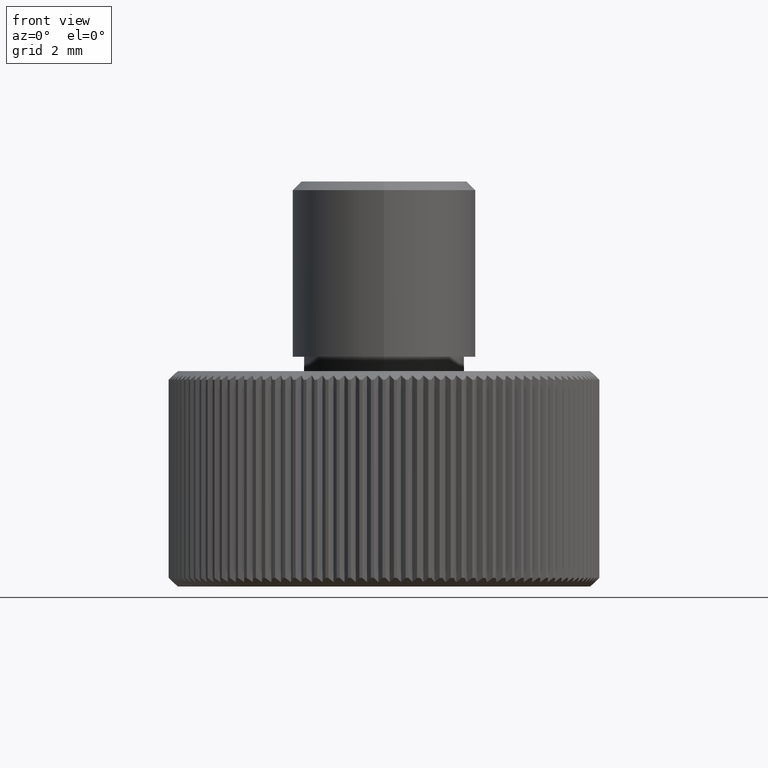
[diagram: clean part render]
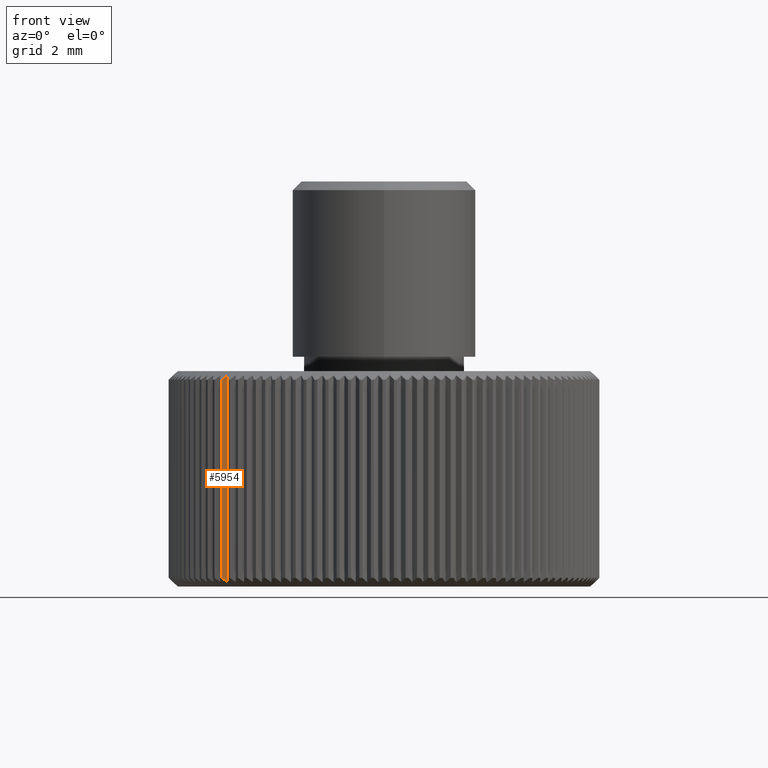
[diagram: same view with one face highlighted and labeled with its STEP entity id]
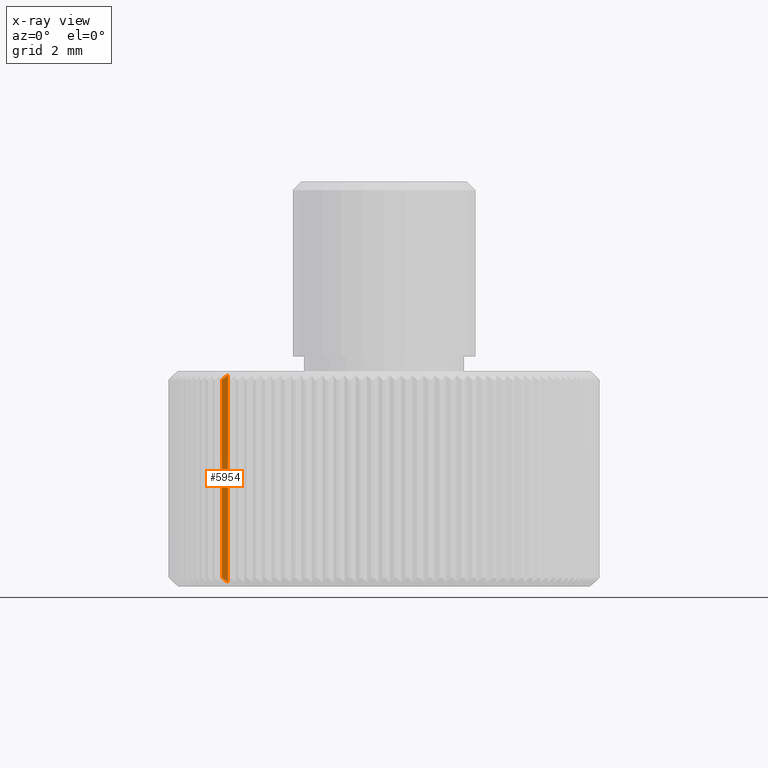
[diagram: x-ray of the same camera — body ghosted, the highlighted face saturated]
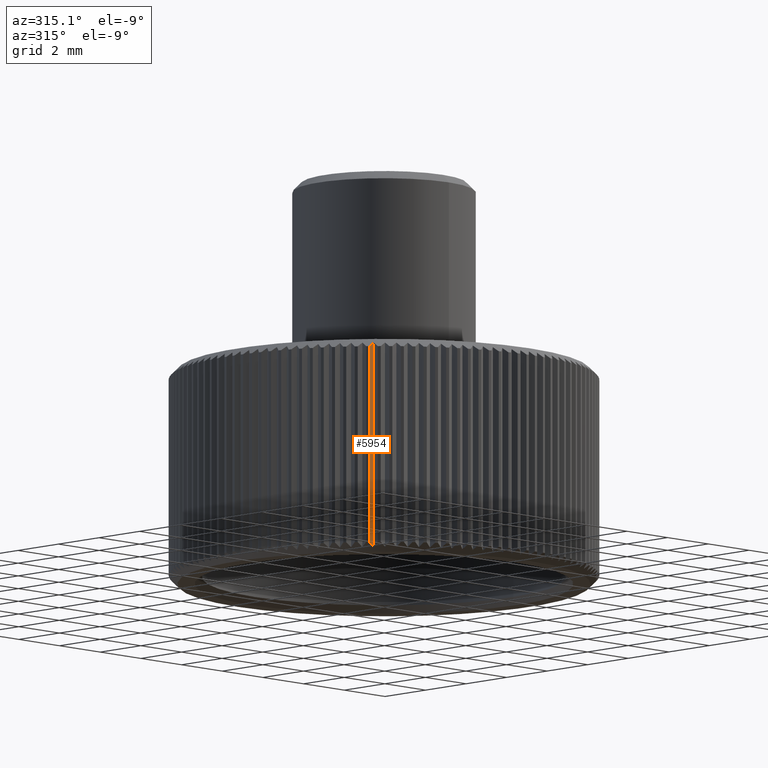
[diagram: same view with one face highlighted and labeled with its STEP entity id]
A machine part, front view. The second image highlights one B-rep face of the part: STEP entity #5954.
The next image is the same camera in x-ray: the body ghosted, the highlighted face saturated — about 0% of this face is hidden behind the body in this view.
A second angle (auxiliary view) of the same face is appended — the face is thin or edge-on in the first view.
In plain terms, the highlighted planar face has unit normal (0.047, 0.9989, -0).
Its self-contained STEP definition (entity closure, byte-faithful):
#307 = CARTESIAN_POINT ( 'NONE',  ( -5.435624558901286818, -4.947371776982815383, 0.1500001255113545817 ) ) ;
#1068 = EDGE_CURVE ( 'NONE', #1158, #5627, #4467, .T. ) ;
#1158 = VERTEX_POINT ( 'NONE', #7996 ) ;
#1377 = CARTESIAN_POINT ( 'NONE',  ( -5.435624559216231333, -4.947371777269482074, 7.349999874062772776 ) ) ;
#1574 = VECTOR ( 'NONE', #8098, 1000.000000000000000 ) ;
#1738 = ORIENTED_EDGE ( 'NONE', *, *, #7720, .T. ) ;
#2269 = VERTEX_POINT ( 'NONE', #12519 ) ;
#2652 = CARTESIAN_POINT ( 'NONE',  ( -5.435624382000001198, -4.947371785000001410, 0.1068000000000000060 ) ) ;
#3831 = CARTESIAN_POINT ( 'NONE',  ( -5.435624382000001198, -4.947371785000001410, 3.750000000000000000 ) ) ;
#4045 = CARTESIAN_POINT ( 'NONE',  ( -5.645444434000000733, -4.937505154000000118, 3.750000000000000000 ) ) ;
#4294 = VECTOR ( 'NONE', #9794, 1000.000000000000000 ) ;
#4467 = B_SPLINE_CURVE_WITH_KNOTS ( 'NONE', 3,
 ( #307, #5347, #5479, #11456 ),
 .UNSPECIFIED., .F., .F.,
 ( 4, 4 ),
 ( 8.463785970660977184E-07, 1.000000000000000000 ),
 .UNSPECIFIED. ) ;
#4796 = VERTEX_POINT ( 'NONE', #4916 ) ;
#4916 = CARTESIAN_POINT ( 'NONE',  ( -5.645444434197548489, -4.937505154875836411, 7.199999999064163880 ) ) ;
#5196 = DIRECTION ( 'NONE',  ( -0.9988961901496479223, 0.04697234616791389622, 0.000000000000000000 ) ) ;
#5347 = CARTESIAN_POINT ( 'NONE',  ( -5.505012386999507790, -4.944108865573357825, 0.1991189473484482608 ) ) ;
#5479 = CARTESIAN_POINT ( 'NONE',  ( -5.574949377843025466, -4.940820131091642864, 0.2491189060879004102 ) ) ;
#5627 = VERTEX_POINT ( 'NONE', #7786 ) ;
#5954 = ADVANCED_FACE ( 'NONE', ( #7685 ), #11737, .F. ) ;
#6689 = DIRECTION ( 'NONE',  ( 0.04697234616791390316, 0.9988961901496480333, -0.000000000000000000 ) ) ;
#7008 = LINE ( 'NONE', #3831, #4294 ) ;
#7262 = ORIENTED_EDGE ( 'NONE', *, *, #10163, .F. ) ;
#7685 = FACE_OUTER_BOUND ( 'NONE', #8652, .T. ) ;
#7720 = EDGE_CURVE ( 'NONE', #1158, #2269, #7008, .T. ) ;
#7786 = CARTESIAN_POINT ( 'NONE',  ( -5.645444433572361476, -4.937505154329047130, 0.3000000001052716136 ) ) ;
#7996 = CARTESIAN_POINT ( 'NONE',  ( -5.435624558901286818, -4.947371776982815383, 0.1500001255113545817 ) ) ;
#8033 = LINE ( 'NONE', #4045, #1574 ) ;
#8098 = DIRECTION ( 'NONE',  ( 0.000000000000000000, 0.000000000000000000, 1.000000000000000000 ) ) ;
#8104 = ORIENTED_EDGE ( 'NONE', *, *, #1068, .F. ) ;
#8652 = EDGE_LOOP ( 'NONE', ( #1738, #11143, #7262, #8104 ) ) ;
#9794 = DIRECTION ( 'NONE',  ( 0.000000000000000000, 0.000000000000000000, 1.000000000000000000 ) ) ;
#10159 = B_SPLINE_CURVE_WITH_KNOTS ( 'NONE', 3,
 ( #11334, #10405, #11472, #1377 ),
 .UNSPECIFIED., .F., .F.,
 ( 4, 4 ),
 ( 0.000000000000000000, 0.9999991516947122072 ),
 .UNSPECIFIED. ) ;
#10163 = EDGE_CURVE ( 'NONE', #5627, #4796, #8033, .T. ) ;
#10391 = AXIS2_PLACEMENT_3D ( 'NONE', #2652, #6689, #5196 ) ;
#10405 = CARTESIAN_POINT ( 'NONE',  ( -5.574949377978915876, -4.940820131085254197, 7.250881093814017575 ) ) ;
#11143 = ORIENTED_EDGE ( 'NONE', *, *, #11541, .F. ) ;
#11334 = CARTESIAN_POINT ( 'NONE',  ( -5.645444434197548489, -4.937505154875836411, 7.199999999064163880 ) ) ;
#11456 = CARTESIAN_POINT ( 'NONE',  ( -5.645444433572361476, -4.937505154329047130, 0.3000000001052716136 ) ) ;
#11472 = CARTESIAN_POINT ( 'NONE',  ( -5.505012387269066387, -4.944108865560687072, 7.300881052458833231 ) ) ;
#11541 = EDGE_CURVE ( 'NONE', #4796, #2269, #10159, .T. ) ;
#11737 = PLANE ( 'NONE',  #10391 ) ;
#12519 = CARTESIAN_POINT ( 'NONE',  ( -5.435624559216231333, -4.947371777269482074, 7.349999874062772776 ) ) ;